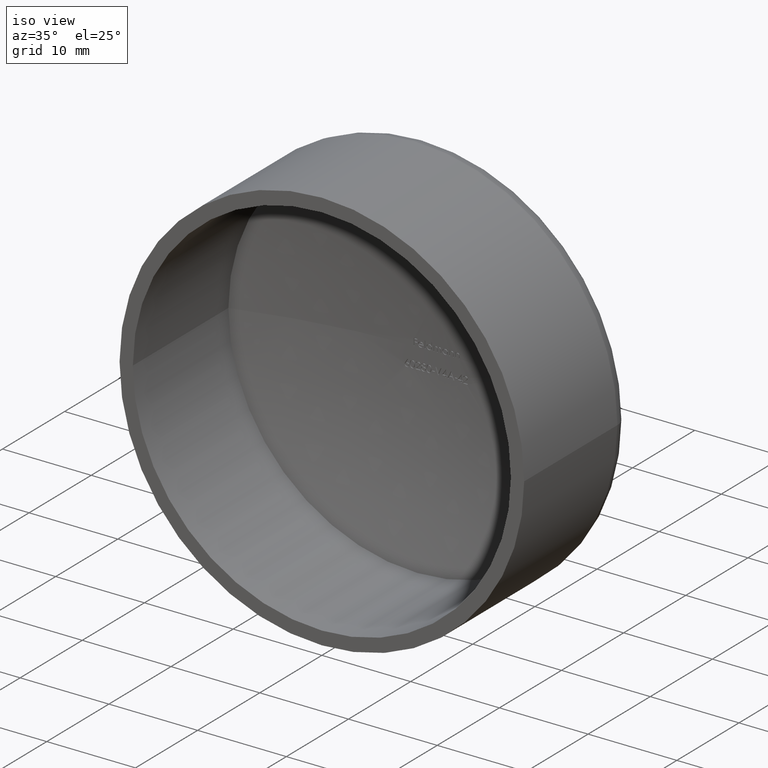
[diagram: clean part render]
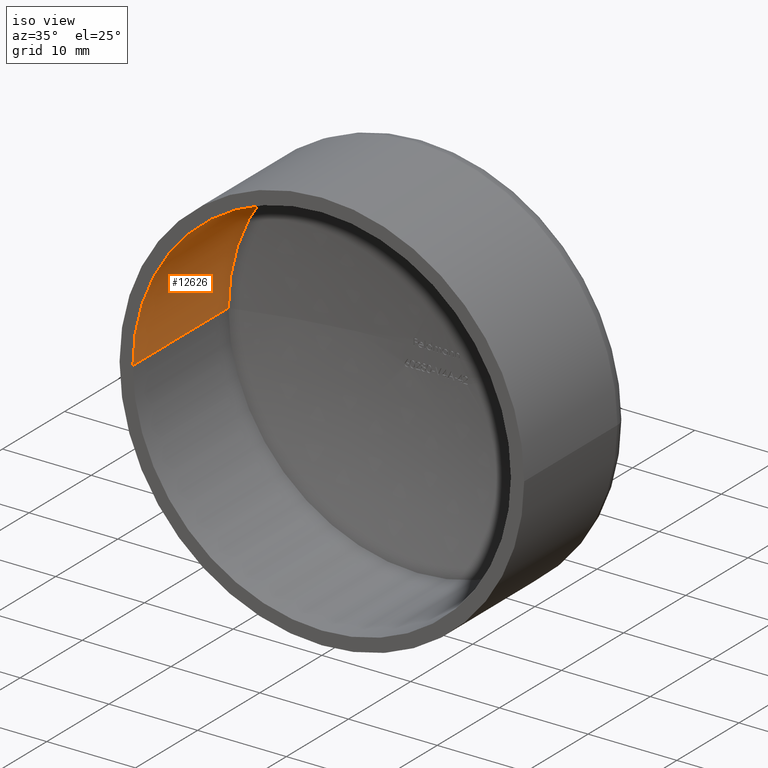
[diagram: same view with one face highlighted and labeled with its STEP entity id]
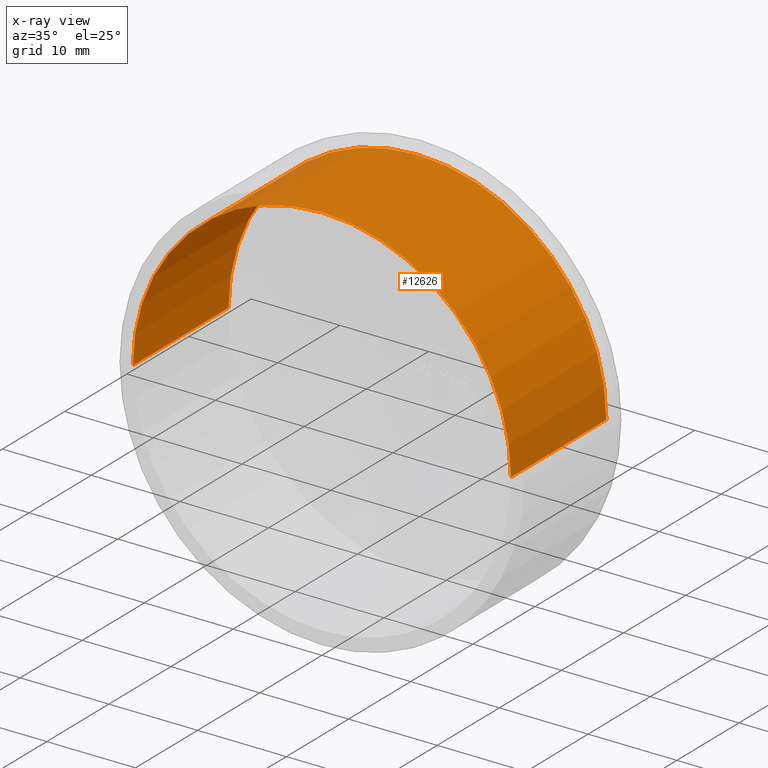
[diagram: x-ray of the same camera — body ghosted, the highlighted face saturated]
A machine part, iso view. The second image highlights one B-rep face of the part: STEP entity #12626.
The next image is the same camera in x-ray: the body ghosted, the highlighted face saturated — about 1% of this face is hidden behind the body in this view.
In plain terms, the highlighted cylindrical surface (partial cylindrical patch) has radius 21.3 mm, axis along (0, 1, -0).
Its self-contained STEP definition (entity closure, byte-faithful):
#213 = DIRECTION ( 'NONE',  ( -1.000000000000000000, 1.628848334250523600E-016, 0.0000000000000000000 ) ) ;
#408 = CARTESIAN_POINT ( 'NONE',  ( 2.850595046290302200E-015, 18.50000000000000400, 0.0000000000000000000 ) ) ;
#1321 = DIRECTION ( 'NONE',  ( 1.540862187183947000E-016, 1.000000000000000000, -0.0000000000000000000 ) ) ;
#1440 = DIRECTION ( 'NONE',  ( 1.540862187183947000E-016, 1.000000000000000000, -0.0000000000000000000 ) ) ;
#1657 = CIRCLE ( 'NONE', #4343, 21.29999999999999400 ) ;
#2292 = VERTEX_POINT ( 'NONE', #3589 ) ;
#2411 = VECTOR ( 'NONE', #7414, 1000.000000000000000 ) ;
#3207 = VERTEX_POINT ( 'NONE', #10009 ) ;
#3240 = CARTESIAN_POINT ( 'NONE',  ( -21.29999999999998600, 15.37296452739100500, 0.0000000000000000000 ) ) ;
#3428 = VERTEX_POINT ( 'NONE', #10133 ) ;
#3589 = CARTESIAN_POINT ( 'NONE',  ( -21.30000000000000100, 6.751483410655421100E-015, 0.0000000000000000000 ) ) ;
#3737 = CIRCLE ( 'NONE', #10262, 21.30000000000000100 ) ;
#4343 = AXIS2_PLACEMENT_3D ( 'NONE', #12151, #1321, #213 ) ;
#4480 = CARTESIAN_POINT ( 'NONE',  ( 21.30000000000000100, 18.50000000000000000, 2.608497682183862100E-015 ) ) ;
#4573 = AXIS2_PLACEMENT_3D ( 'NONE', #408, #1440, #8317 ) ;
#5395 = EDGE_CURVE ( 'NONE', #8585, #3207, #1657, .T. ) ;
#5572 = EDGE_CURVE ( 'NONE', #3428, #3207, #11541, .T. ) ;
#5807 = CARTESIAN_POINT ( 'NONE',  ( -21.29999999999999400, 18.50000000000000700, 0.0000000000000000000 ) ) ;
#6192 = ORIENTED_EDGE ( 'NONE', *, *, #5395, .T. ) ;
#6282 = FACE_OUTER_BOUND ( 'NONE', #9923, .T. ) ;
#6809 = ORIENTED_EDGE ( 'NONE', *, *, #11895, .T. ) ;
#7414 = DIRECTION ( 'NONE',  ( 1.540862187183947000E-016, 1.000000000000000000, -0.0000000000000000000 ) ) ;
#7959 = EDGE_CURVE ( 'NONE', #2292, #3428, #3737, .T. ) ;
#8187 = VECTOR ( 'NONE', #11778, 1000.000000000000000 ) ;
#8317 = DIRECTION ( 'NONE',  ( -1.000000000000000000, 1.628848334250523300E-016, 0.0000000000000000000 ) ) ;
#8326 = LINE ( 'NONE', #5807, #8187 ) ;
#8356 = ORIENTED_EDGE ( 'NONE', *, *, #5572, .F. ) ;
#8452 = DIRECTION ( 'NONE',  ( 1.540862187183947000E-016, 1.000000000000000000, -0.0000000000000000000 ) ) ;
#8495 = CARTESIAN_POINT ( 'NONE',  ( 3.851859888774471700E-031, 3.469446951953614200E-015, 0.0000000000000000000 ) ) ;
#8585 = VERTEX_POINT ( 'NONE', #3240 ) ;
#9189 = ORIENTED_EDGE ( 'NONE', *, *, #7959, .F. ) ;
#9923 = EDGE_LOOP ( 'NONE', ( #8356, #9189, #6809, #6192 ) ) ;
#10009 = CARTESIAN_POINT ( 'NONE',  ( 21.30000000000000100, 15.37296452739100200, 2.608497682183860900E-015 ) ) ;
#10133 = CARTESIAN_POINT ( 'NONE',  ( 21.30000000000000100, 1.874104932518070100E-016, 2.608497682183862100E-015 ) ) ;
#10262 = AXIS2_PLACEMENT_3D ( 'NONE', #8495, #8452, #10360 ) ;
#10360 = DIRECTION ( 'NONE',  ( -1.000000000000000000, 1.540862187183947000E-016, 0.0000000000000000000 ) ) ;
#11541 = LINE ( 'NONE', #4480, #2411 ) ;
#11704 = CYLINDRICAL_SURFACE ( 'NONE', #4573, 21.29999999999999700 ) ;
#11778 = DIRECTION ( 'NONE',  ( 1.540862187183947000E-016, 1.000000000000000000, -0.0000000000000000000 ) ) ;
#11895 = EDGE_CURVE ( 'NONE', #2292, #8585, #8326, .T. ) ;
#12151 = CARTESIAN_POINT ( 'NONE',  ( 2.368761974517694300E-015, 15.37296452739101200, 0.0000000000000000000 ) ) ;
#12626 = ADVANCED_FACE ( 'NONE', ( #6282 ), #11704, .F. ) ;